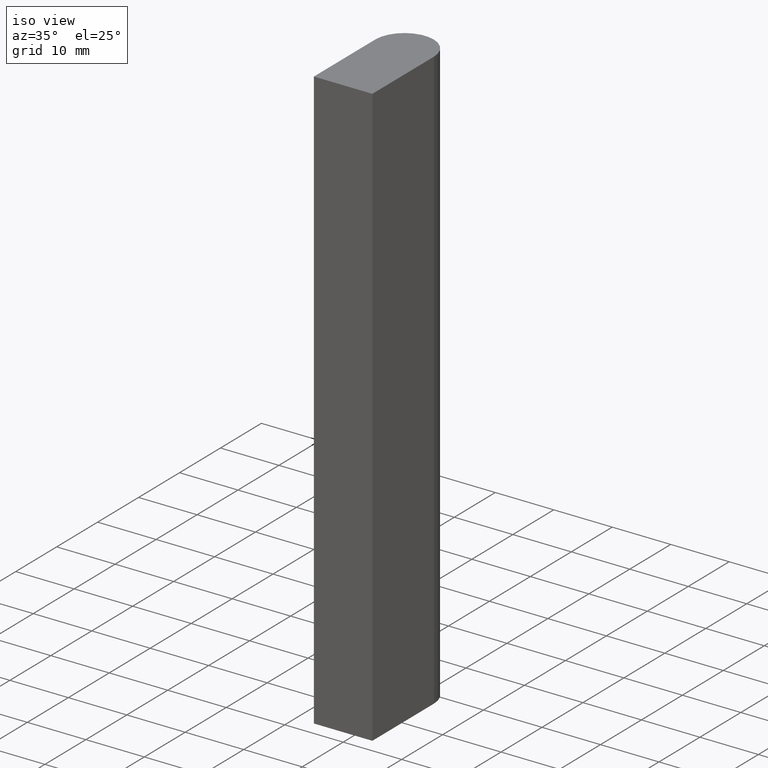
[diagram: clean part render]
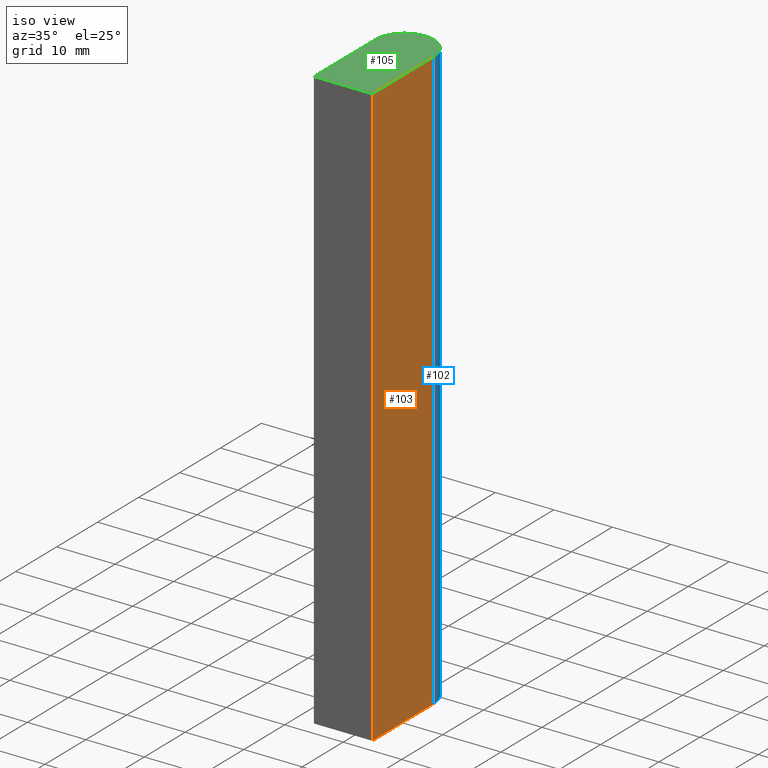
[diagram: same view with three faces highlighted in distinct colors, each labeled with its STEP entity id]
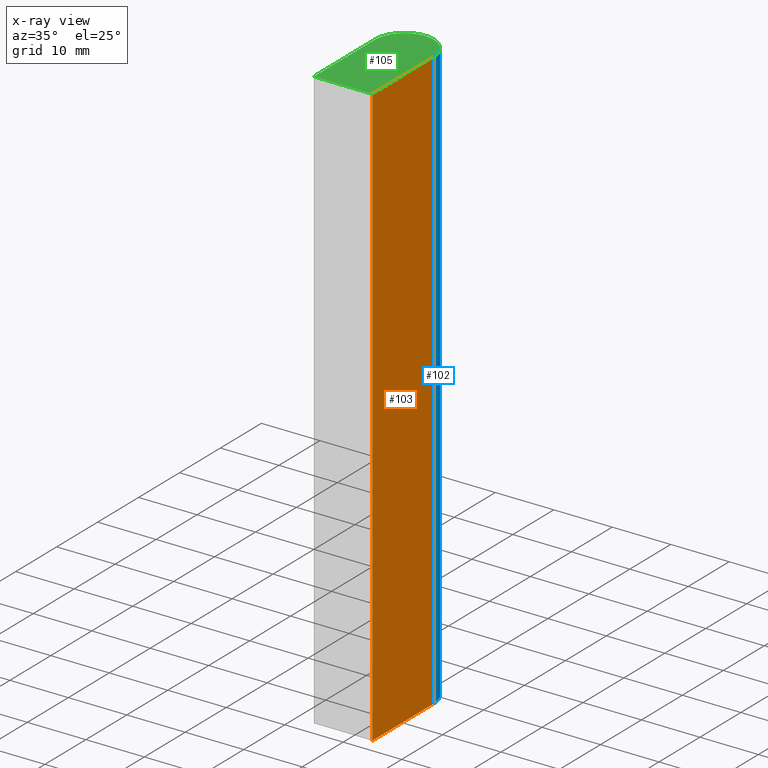
[diagram: x-ray of the same camera — body ghosted, the three highlighted faces saturated]
A machine part, iso view with three faces highlighted in distinct colors.
The next image is the same camera in x-ray (body ghosted, the three faces saturated) — at least one of them is partly hidden behind the body in this view.
Their STEP definitions:

[orange] entity #103 — the highlighted planar face has unit normal (1, 0, 0).
#20=FACE_OUTER_BOUND('',#26,.T.);
#26=EDGE_LOOP('',(#83,#84,#85,#86));
#31=LINE('',#166,#41);
#37=LINE('',#181,#47);
#38=LINE('',#184,#48);
#39=LINE('',#185,#49);
#41=VECTOR('',#138,10.);
#47=VECTOR('',#152,10.);
#48=VECTOR('',#155,10.);
#49=VECTOR('',#156,10.);
#51=VERTEX_POINT('',#164);
#52=VERTEX_POINT('',#165);
#57=VERTEX_POINT('',#179);
#58=VERTEX_POINT('',#183);
#59=EDGE_CURVE('',#51,#52,#31,.T.);
#67=EDGE_CURVE('',#52,#57,#37,.T.);
#68=EDGE_CURVE('',#57,#58,#38,.T.);
#69=EDGE_CURVE('',#51,#58,#39,.T.);
#83=ORIENTED_EDGE('',*,*,#68,.T.);
#84=ORIENTED_EDGE('',*,*,#69,.F.);
#85=ORIENTED_EDGE('',*,*,#59,.T.);
#86=ORIENTED_EDGE('',*,*,#67,.T.);
#97=PLANE('',#131);
#103=ADVANCED_FACE('',(#20),#97,.T.);
#131=AXIS2_PLACEMENT_3D('',#182,#153,#154);
#138=DIRECTION('',(-2.22044604925031E-16,1.,0.));
#152=DIRECTION('',(0.,0.,1.));
#153=DIRECTION('center_axis',(1.,2.22044604925031E-16,0.));
#154=DIRECTION('ref_axis',(0.,0.,-1.));
#155=DIRECTION('',(2.22044604925031E-16,-1.,0.));
#156=DIRECTION('',(0.,0.,1.));
#164=CARTESIAN_POINT('',(5.,-10.,-50.));
#165=CARTESIAN_POINT('',(5.,5.,-50.));
#166=CARTESIAN_POINT('',(5.,-10.,-50.));
#179=CARTESIAN_POINT('',(5.,5.,50.));
#181=CARTESIAN_POINT('',(5.,5.,0.));
#182=CARTESIAN_POINT('Origin',(5.,5.,0.));
#183=CARTESIAN_POINT('',(5.,-10.,50.));
#184=CARTESIAN_POINT('',(5.,-10.,50.));
#185=CARTESIAN_POINT('',(5.,-10.,0.));

[blue] entity #102 — the highlighted cylindrical surface (edge-blend (fillet) strip) has radius 5 mm, axis along (0, 0, 1).
#16=CYLINDRICAL_SURFACE('',#129,5.);
#19=FACE_OUTER_BOUND('',#25,.T.);
#25=EDGE_LOOP('',(#79,#80,#81,#82));
#29=CIRCLE('',#127,5.);
#30=CIRCLE('',#130,5.);
#35=LINE('',#176,#45);
#37=LINE('',#181,#47);
#45=VECTOR('',#146,10.);
#47=VECTOR('',#152,10.);
#52=VERTEX_POINT('',#165);
#54=VERTEX_POINT('',#169);
#56=VERTEX_POINT('',#174);
#57=VERTEX_POINT('',#179);
#62=EDGE_CURVE('',#52,#54,#29,.T.);
#64=EDGE_CURVE('',#54,#56,#35,.T.);
#66=EDGE_CURVE('',#56,#57,#30,.T.);
#67=EDGE_CURVE('',#52,#57,#37,.T.);
#79=ORIENTED_EDGE('',*,*,#66,.T.);
#80=ORIENTED_EDGE('',*,*,#67,.F.);
#81=ORIENTED_EDGE('',*,*,#62,.T.);
#82=ORIENTED_EDGE('',*,*,#64,.T.);
#102=ADVANCED_FACE('',(#19),#16,.T.);
#127=AXIS2_PLACEMENT_3D('',#171,#141,#142);
#129=AXIS2_PLACEMENT_3D('',#178,#148,#149);
#130=AXIS2_PLACEMENT_3D('',#180,#150,#151);
#141=DIRECTION('center_axis',(0.,0.,1.));
#142=DIRECTION('ref_axis',(-2.22044604925031E-16,1.,0.));
#146=DIRECTION('',(0.,0.,1.));
#148=DIRECTION('center_axis',(0.,0.,1.));
#149=DIRECTION('ref_axis',(1.,7.77156117237609E-16,0.));
#150=DIRECTION('center_axis',(0.,0.,-1.));
#151=DIRECTION('ref_axis',(1.,7.77156117237609E-16,0.));
#152=DIRECTION('',(0.,0.,1.));
#165=CARTESIAN_POINT('',(5.,5.,-50.));
#169=CARTESIAN_POINT('',(-5.,5.,-50.));
#171=CARTESIAN_POINT('Origin',(2.77555756156289E-15,5.,-50.));
#174=CARTESIAN_POINT('',(-5.,5.,50.));
#176=CARTESIAN_POINT('',(-5.,5.,0.));
#178=CARTESIAN_POINT('Origin',(-3.05311331771918E-15,5.,0.));
#179=CARTESIAN_POINT('',(5.,5.,50.));
#180=CARTESIAN_POINT('Origin',(-3.05311331771918E-15,5.,50.));
#181=CARTESIAN_POINT('',(5.,5.,0.));

[green] entity #105 — the highlighted planar face has unit normal (0, 0, 1).
#22=FACE_OUTER_BOUND('',#28,.T.);
#28=EDGE_LOOP('',(#91,#92,#93,#94));
#30=CIRCLE('',#130,5.);
#34=LINE('',#175,#44);
#38=LINE('',#184,#48);
#40=LINE('',#187,#50);
#44=VECTOR('',#145,10.);
#48=VECTOR('',#155,10.);
#50=VECTOR('',#159,10.);
#55=VERTEX_POINT('',#173);
#56=VERTEX_POINT('',#174);
#57=VERTEX_POINT('',#179);
#58=VERTEX_POINT('',#183);
#63=EDGE_CURVE('',#55,#56,#34,.T.);
#66=EDGE_CURVE('',#56,#57,#30,.T.);
#68=EDGE_CURVE('',#57,#58,#38,.T.);
#70=EDGE_CURVE('',#58,#55,#40,.T.);
#91=ORIENTED_EDGE('',*,*,#63,.F.);
#92=ORIENTED_EDGE('',*,*,#70,.F.);
#93=ORIENTED_EDGE('',*,*,#68,.F.);
#94=ORIENTED_EDGE('',*,*,#66,.F.);
#99=PLANE('',#133);
#105=ADVANCED_FACE('',(#22),#99,.T.);
#130=AXIS2_PLACEMENT_3D('',#180,#150,#151);
#133=AXIS2_PLACEMENT_3D('',#188,#160,#161);
#145=DIRECTION('',(3.70074341541719E-17,1.,0.));
#150=DIRECTION('center_axis',(0.,0.,-1.));
#151=DIRECTION('ref_axis',(1.,7.77156117237609E-16,0.));
#155=DIRECTION('',(2.22044604925031E-16,-1.,0.));
#159=DIRECTION('',(-1.,-4.44089209850063E-16,0.));
#160=DIRECTION('center_axis',(0.,0.,1.));
#161=DIRECTION('ref_axis',(1.,0.,0.));
#173=CARTESIAN_POINT('',(-5.,-10.,50.));
#174=CARTESIAN_POINT('',(-5.,5.,50.));
#175=CARTESIAN_POINT('',(-5.,5.,50.));
#179=CARTESIAN_POINT('',(5.,5.,50.));
#180=CARTESIAN_POINT('Origin',(-3.05311331771918E-15,5.,50.));
#183=CARTESIAN_POINT('',(5.,-10.,50.));
#184=CARTESIAN_POINT('',(5.,-10.,50.));
#187=CARTESIAN_POINT('',(-5.,-10.,50.));
#188=CARTESIAN_POINT('Origin',(8.32667268468867E-16,-0.853184076135576,
50.));